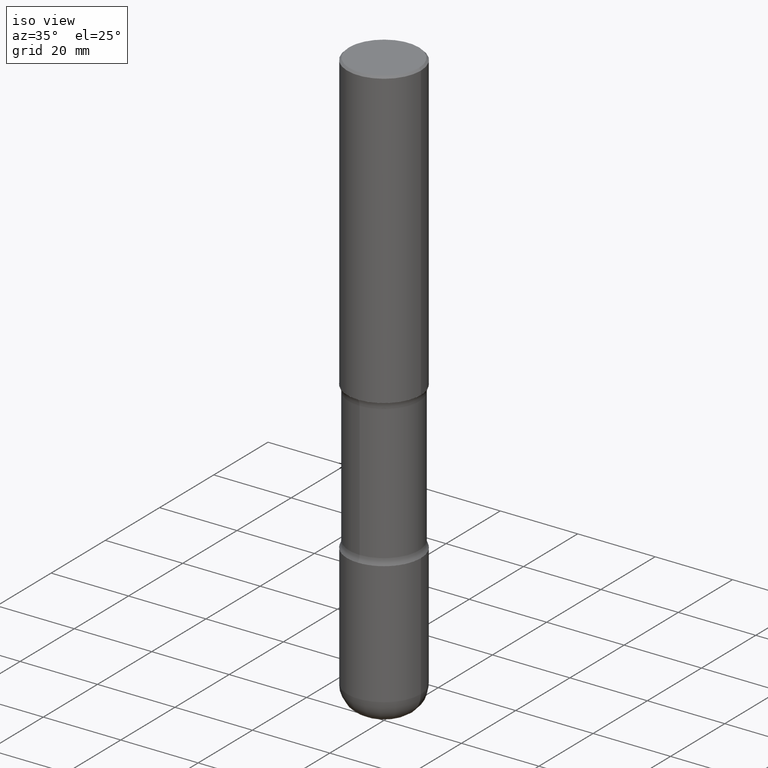
[diagram: clean part render]
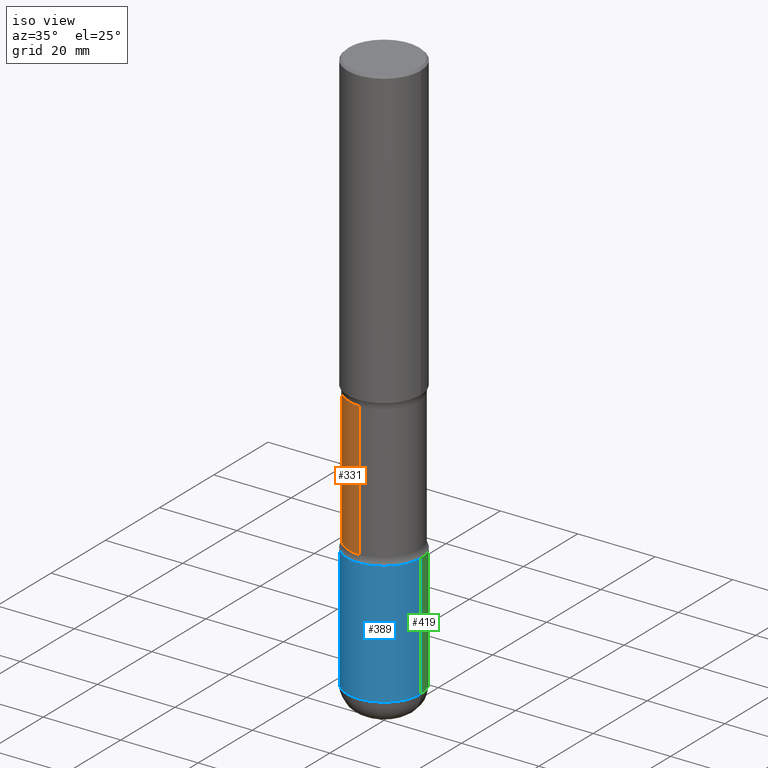
[diagram: same view with three faces highlighted in distinct colors, each labeled with its STEP entity id]
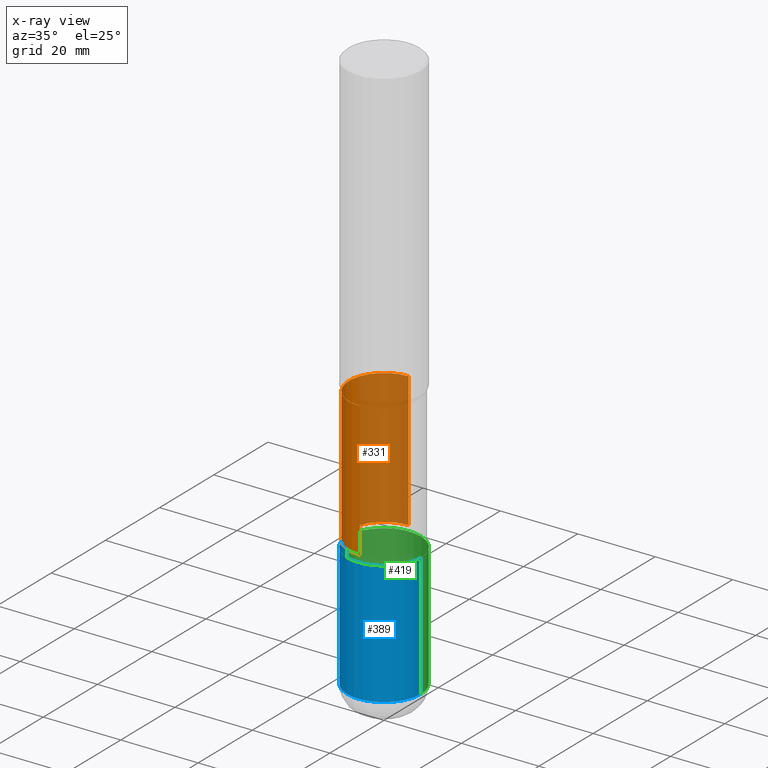
[diagram: x-ray of the same camera — body ghosted, the three highlighted faces saturated]
A machine part, iso view with three faces highlighted in distinct colors.
The next image is the same camera in x-ray (body ghosted, the three faces saturated) — at least one of them is partly hidden behind the body in this view.
Their STEP definitions:

[orange] entity #331 — the highlighted cylindrical surface (partial cylindrical patch) has radius 9.0488 mm, axis along (0, -0, -1).
#1 = CARTESIAN_POINT ( 'NONE',  ( -2.508369580435144205E-15, -0.3562500000000108358, -3.065847835955328282 ) ) ;
#23 = ORIENTED_EDGE ( 'NONE', *, *, #239, .F. ) ;
#35 = DIRECTION ( 'NONE',  ( 2.508247471065963170E-29, -3.401578717594097873E-15, -1.000000000000000000 ) ) ;
#41 = VECTOR ( 'NONE', #166, 39.37007874015748143 ) ;
#56 = VERTEX_POINT ( 'NONE', #369 ) ;
#65 = EDGE_CURVE ( 'NONE', #276, #428, #259, .T. ) ;
#67 = ORIENTED_EDGE ( 'NONE', *, *, #65, .T. ) ;
#83 = VERTEX_POINT ( 'NONE', #326 ) ;
#107 = EDGE_LOOP ( 'NONE', ( #401, #67, #185, #23 ) ) ;
#116 = CARTESIAN_POINT ( 'NONE',  ( -2.444052411705960129E-15, -0.3562500000000208278, -5.999999999999998224 ) ) ;
#117 = CIRCLE ( 'NONE', #187, 0.3562500000000000111 ) ;
#130 = EDGE_CURVE ( 'NONE', #276, #56, #506, .T. ) ;
#132 = DIRECTION ( 'NONE',  ( 2.508247471065963170E-29, -3.401578717594097873E-15, -1.000000000000000000 ) ) ;
#166 = DIRECTION ( 'NONE',  ( 2.508247471065963170E-29, -3.401578717594097873E-15, -1.000000000000000000 ) ) ;
#169 = DIRECTION ( 'NONE',  ( 2.508247471065963170E-29, -3.401578717594097873E-15, -1.000000000000000000 ) ) ;
#185 = ORIENTED_EDGE ( 'NONE', *, *, #323, .T. ) ;
#187 = AXIS2_PLACEMENT_3D ( 'NONE', #383, #132, #437 ) ;
#194 = DIRECTION ( 'NONE',  ( 6.982962677686265133E-15, 1.000000000000000000, -3.067338098149347905E-15 ) ) ;
#239 = EDGE_CURVE ( 'NONE', #56, #83, #117, .T. ) ;
#259 = CIRCLE ( 'NONE', #445, 0.3562500000000000111 ) ;
#276 = VERTEX_POINT ( 'NONE', #1 ) ;
#301 = CARTESIAN_POINT ( 'NONE',  ( 1.476698083443205790E-28, -2.081403410118529621E-14, -5.999999999999999112 ) ) ;
#319 = CARTESIAN_POINT ( 'NONE',  ( 2.487680453925806274E-15, 0.3562499999999891309, -3.065847835955330503 ) ) ;
#323 = EDGE_CURVE ( 'NONE', #428, #83, #381, .T. ) ;
#326 = CARTESIAN_POINT ( 'NONE',  ( 2.487680453925840195E-15, 0.3562499999999844680, -4.434152164044670386 ) ) ;
#331 = ADVANCED_FACE ( 'NONE', ( #338 ), #512, .T. ) ;
#338 = FACE_OUTER_BOUND ( 'NONE', #107, .T. ) ;
#368 = CARTESIAN_POINT ( 'NONE',  ( 7.407401089244291879E-29, -1.083328454578828421E-14, -3.065847835955329614 ) ) ;
#369 = CARTESIAN_POINT ( 'NONE',  ( -2.508369580435107128E-15, -0.3562500000000154987, -4.434152164044668609 ) ) ;
#371 = DIRECTION ( 'NONE',  ( 6.982962677686265133E-15, 1.000000000000000000, -3.067338098149347905E-15 ) ) ;
#381 = LINE ( 'NONE', #558, #41 ) ;
#383 = CARTESIAN_POINT ( 'NONE',  ( 1.083944695982298980E-28, -1.548767942740887449E-14, -4.434152164044669497 ) ) ;
#390 = AXIS2_PLACEMENT_3D ( 'NONE', #301, #169, #194 ) ;
#401 = ORIENTED_EDGE ( 'NONE', *, *, #130, .F. ) ;
#423 = VECTOR ( 'NONE', #35, 39.37007874015748143 ) ;
#428 = VERTEX_POINT ( 'NONE', #319 ) ;
#437 = DIRECTION ( 'NONE',  ( 6.982962677686265133E-15, 1.000000000000000000, -3.067338098149347905E-15 ) ) ;
#445 = AXIS2_PLACEMENT_3D ( 'NONE', #368, #497, #371 ) ;
#497 = DIRECTION ( 'NONE',  ( 2.508247471065963170E-29, -3.401578717594097873E-15, -1.000000000000000000 ) ) ;
#506 = LINE ( 'NONE', #116, #423 ) ;
#512 = CYLINDRICAL_SURFACE ( 'NONE', #390, 0.3562500000000000111 ) ;
#558 = CARTESIAN_POINT ( 'NONE',  ( 2.487680453925879638E-15, 0.3562499999999791389, -6.000000000000000888 ) ) ;

[blue] entity #389 — the highlighted cylindrical surface (partial cylindrical patch) has radius 9.525 mm, axis along (-0, 0, 1).
#2 = VERTEX_POINT ( 'NONE', #532 ) ;
#10 = CARTESIAN_POINT ( 'NONE',  ( 1.100460962783311244E-28, -1.571166602479415374E-14, -4.499999999999999112 ) ) ;
#21 = VERTEX_POINT ( 'NONE', #157 ) ;
#27 = VERTEX_POINT ( 'NONE', #113 ) ;
#29 = CARTESIAN_POINT ( 'NONE',  ( 1.406144563556453319E-28, -2.007601769834808306E-14, -5.749999999999998224 ) ) ;
#48 = AXIS2_PLACEMENT_3D ( 'NONE', #148, #231, #277 ) ;
#58 = CIRCLE ( 'NONE', #491, 0.3750000000000003886 ) ;
#62 = ORIENTED_EDGE ( 'NONE', *, *, #349, .F. ) ;
#68 = AXIS2_PLACEMENT_3D ( 'NONE', #29, #153, #411 ) ;
#98 = EDGE_CURVE ( 'NONE', #2, #27, #206, .T. ) ;
#101 = FACE_OUTER_BOUND ( 'NONE', #365, .T. ) ;
#109 = VECTOR ( 'NONE', #124, 39.37007874015748143 ) ;
#113 = CARTESIAN_POINT ( 'NONE',  ( 0.3750000000000001110, -2.269462870248043307E-14, -5.749999999999998224 ) ) ;
#124 = DIRECTION ( 'NONE',  ( -2.445468806185136877E-29, 3.491481338843145188E-15, 1.000000000000000000 ) ) ;
#125 = ORIENTED_EDGE ( 'NONE', *, *, #161, .T. ) ;
#135 = DIRECTION ( 'NONE',  ( -2.445468806185136597E-29, 3.491481338843145583E-15, 1.000000000000000000 ) ) ;
#148 = CARTESIAN_POINT ( 'NONE',  ( 0.000000000000000000, 0.000000000000000000, 0.000000000000000000 ) ) ;
#153 = DIRECTION ( 'NONE',  ( -2.445468806185136597E-29, 3.491481338843145583E-15, 1.000000000000000000 ) ) ;
#157 = CARTESIAN_POINT ( 'NONE',  ( -0.3750000000000003886, -1.522930660247074112E-14, -4.499999999999999112 ) ) ;
#160 = DIRECTION ( 'NONE',  ( -2.445468806185136877E-29, 3.491481338843145188E-15, 1.000000000000000000 ) ) ;
#161 = EDGE_CURVE ( 'NONE', #27, #521, #247, .T. ) ;
#200 = ORIENTED_EDGE ( 'NONE', *, *, #98, .T. ) ;
#206 = CIRCLE ( 'NONE', #68, 0.3750000000000004441 ) ;
#231 = DIRECTION ( 'NONE',  ( -2.445468806185136597E-29, 3.491481338843145583E-15, 1.000000000000000000 ) ) ;
#247 = LINE ( 'NONE', #553, #278 ) ;
#273 = CYLINDRICAL_SURFACE ( 'NONE', #48, 0.3750000000000003886 ) ;
#277 = DIRECTION ( 'NONE',  ( 1.000000000000000000, -6.982962677686265922E-15, 4.876176775795935793E-29 ) ) ;
#278 = VECTOR ( 'NONE', #160, 39.37007874015748143 ) ;
#291 = CARTESIAN_POINT ( 'NONE',  ( 0.3750000000000003886, -1.833027702892650691E-14, -4.499999999999999112 ) ) ;
#300 = EDGE_CURVE ( 'NONE', #2, #21, #479, .T. ) ;
#349 = EDGE_CURVE ( 'NONE', #21, #521, #58, .T. ) ;
#365 = EDGE_LOOP ( 'NONE', ( #384, #200, #125, #62 ) ) ;
#384 = ORIENTED_EDGE ( 'NONE', *, *, #300, .F. ) ;
#389 = ADVANCED_FACE ( 'NONE', ( #101 ), #273, .T. ) ;
#411 = DIRECTION ( 'NONE',  ( 1.000000000000000000, -6.982962677686265133E-15, 0.000000000000000000 ) ) ;
#443 = DIRECTION ( 'NONE',  ( 1.000000000000000000, -6.982962677686265922E-15, 0.000000000000000000 ) ) ;
#468 = CARTESIAN_POINT ( 'NONE',  ( -0.3750000000000003886, 2.664535259100378458E-15, -1.844600658845591560E-29 ) ) ;
#479 = LINE ( 'NONE', #468, #109 ) ;
#491 = AXIS2_PLACEMENT_3D ( 'NONE', #10, #135, #443 ) ;
#521 = VERTEX_POINT ( 'NONE', #291 ) ;
#532 = CARTESIAN_POINT ( 'NONE',  ( -0.3750000000000001110, -1.741148243924770736E-14, -5.749999999999998224 ) ) ;
#553 = CARTESIAN_POINT ( 'NONE',  ( 0.3750000000000003886, -2.618611004132352383E-15, 1.828566290923477884E-29 ) ) ;

[green] entity #419 — the highlighted cylindrical surface (partial cylindrical patch) has radius 9.525 mm, axis along (-0, 0, 1).
#2 = VERTEX_POINT ( 'NONE', #532 ) ;
#15 = CIRCLE ( 'NONE', #327, 0.3750000000000003886 ) ;
#21 = VERTEX_POINT ( 'NONE', #157 ) ;
#27 = VERTEX_POINT ( 'NONE', #113 ) ;
#50 = CYLINDRICAL_SURFACE ( 'NONE', #95, 0.3750000000000003886 ) ;
#61 = CARTESIAN_POINT ( 'NONE',  ( 0.000000000000000000, 0.000000000000000000, 0.000000000000000000 ) ) ;
#69 = AXIS2_PLACEMENT_3D ( 'NONE', #184, #188, #488 ) ;
#84 = DIRECTION ( 'NONE',  ( -2.445468806185136597E-29, 3.491481338843145583E-15, 1.000000000000000000 ) ) ;
#95 = AXIS2_PLACEMENT_3D ( 'NONE', #61, #190, #484 ) ;
#109 = VECTOR ( 'NONE', #124, 39.37007874015748143 ) ;
#113 = CARTESIAN_POINT ( 'NONE',  ( 0.3750000000000001110, -2.269462870248043307E-14, -5.749999999999998224 ) ) ;
#118 = CARTESIAN_POINT ( 'NONE',  ( 1.100460962783311244E-28, -1.571166602479415374E-14, -4.499999999999999112 ) ) ;
#124 = DIRECTION ( 'NONE',  ( -2.445468806185136877E-29, 3.491481338843145188E-15, 1.000000000000000000 ) ) ;
#129 = DIRECTION ( 'NONE',  ( 1.000000000000000000, -6.982962677686265922E-15, 0.000000000000000000 ) ) ;
#156 = CIRCLE ( 'NONE', #69, 0.3750000000000004441 ) ;
#157 = CARTESIAN_POINT ( 'NONE',  ( -0.3750000000000003886, -1.522930660247074112E-14, -4.499999999999999112 ) ) ;
#160 = DIRECTION ( 'NONE',  ( -2.445468806185136877E-29, 3.491481338843145188E-15, 1.000000000000000000 ) ) ;
#161 = EDGE_CURVE ( 'NONE', #27, #521, #247, .T. ) ;
#184 = CARTESIAN_POINT ( 'NONE',  ( 1.406144563556453319E-28, -2.007601769834808306E-14, -5.749999999999998224 ) ) ;
#188 = DIRECTION ( 'NONE',  ( -2.445468806185136597E-29, 3.491481338843145583E-15, 1.000000000000000000 ) ) ;
#190 = DIRECTION ( 'NONE',  ( -2.445468806185136597E-29, 3.491481338843145583E-15, 1.000000000000000000 ) ) ;
#193 = EDGE_CURVE ( 'NONE', #521, #21, #15, .T. ) ;
#195 = ORIENTED_EDGE ( 'NONE', *, *, #374, .T. ) ;
#247 = LINE ( 'NONE', #553, #278 ) ;
#278 = VECTOR ( 'NONE', #160, 39.37007874015748143 ) ;
#291 = CARTESIAN_POINT ( 'NONE',  ( 0.3750000000000003886, -1.833027702892650691E-14, -4.499999999999999112 ) ) ;
#300 = EDGE_CURVE ( 'NONE', #2, #21, #479, .T. ) ;
#320 = ORIENTED_EDGE ( 'NONE', *, *, #300, .T. ) ;
#327 = AXIS2_PLACEMENT_3D ( 'NONE', #118, #84, #129 ) ;
#374 = EDGE_CURVE ( 'NONE', #27, #2, #156, .T. ) ;
#395 = FACE_OUTER_BOUND ( 'NONE', #534, .T. ) ;
#396 = ORIENTED_EDGE ( 'NONE', *, *, #161, .F. ) ;
#419 = ADVANCED_FACE ( 'NONE', ( #395 ), #50, .T. ) ;
#439 = ORIENTED_EDGE ( 'NONE', *, *, #193, .F. ) ;
#468 = CARTESIAN_POINT ( 'NONE',  ( -0.3750000000000003886, 2.664535259100378458E-15, -1.844600658845591560E-29 ) ) ;
#479 = LINE ( 'NONE', #468, #109 ) ;
#484 = DIRECTION ( 'NONE',  ( 1.000000000000000000, -6.982962677686265922E-15, 4.876176775795935793E-29 ) ) ;
#488 = DIRECTION ( 'NONE',  ( 1.000000000000000000, -6.982962677686265133E-15, 0.000000000000000000 ) ) ;
#521 = VERTEX_POINT ( 'NONE', #291 ) ;
#532 = CARTESIAN_POINT ( 'NONE',  ( -0.3750000000000001110, -1.741148243924770736E-14, -5.749999999999998224 ) ) ;
#534 = EDGE_LOOP ( 'NONE', ( #195, #320, #439, #396 ) ) ;
#553 = CARTESIAN_POINT ( 'NONE',  ( 0.3750000000000003886, -2.618611004132352383E-15, 1.828566290923477884E-29 ) ) ;